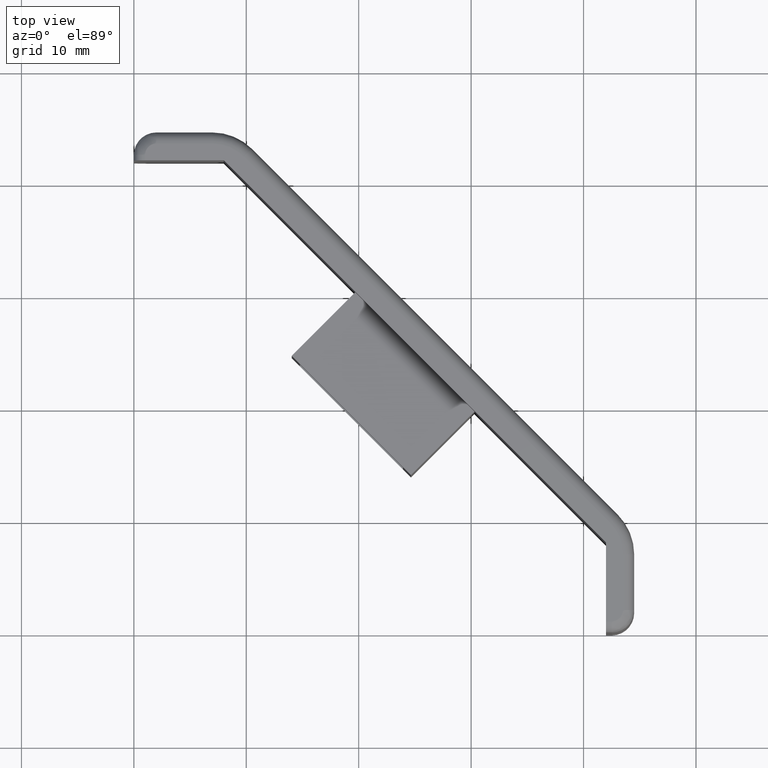
[diagram: clean part render]
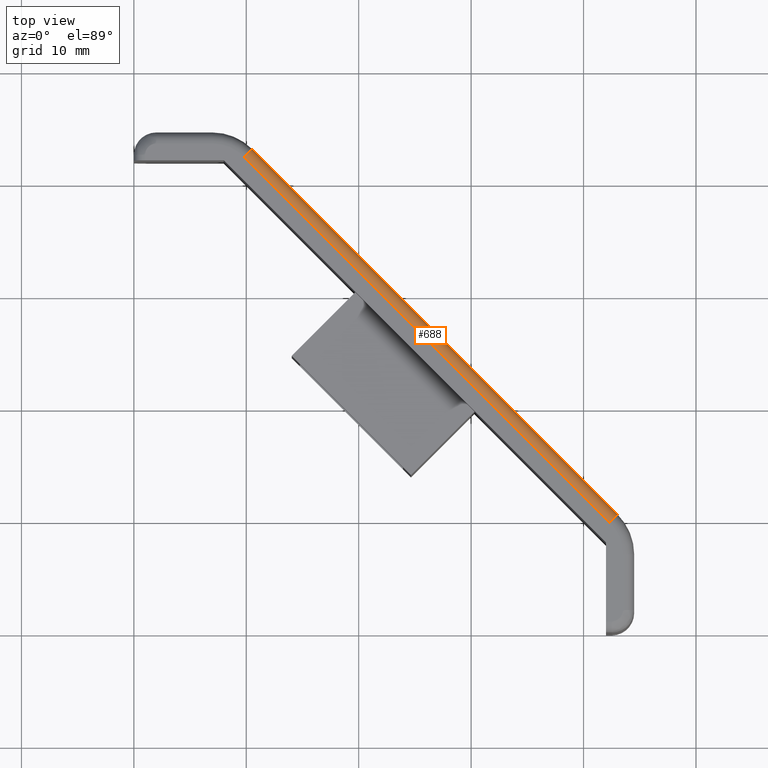
[diagram: same view with one face highlighted and labeled with its STEP entity id]
A machine part, top view. The second image highlights one B-rep face of the part: STEP entity #688.
In plain terms, the highlighted cylindrical surface (edge-blend (fillet) strip) has radius 1 mm, axis along (0.7071, -0.7071, 0).
Its self-contained STEP definition (entity closure, byte-faithful):
#31=CYLINDRICAL_SURFACE('',#751,0.999999999999998);
#68=FACE_OUTER_BOUND('',#112,.T.);
#112=EDGE_LOOP('',(#578,#579,#580,#581));
#135=LINE('',#1017,#197);
#172=LINE('',#1111,#234);
#197=VECTOR('',#799,46.0121933088198);
#234=VECTOR('',#874,46.0121933088197);
#272=CIRCLE('',#752,0.999999999999999);
#273=CIRCLE('',#753,1.);
#289=VERTEX_POINT('',#995);
#299=VERTEX_POINT('',#1015);
#336=VERTEX_POINT('',#1109);
#337=VERTEX_POINT('',#1110);
#359=EDGE_CURVE('',#299,#289,#135,.T.);
#404=EDGE_CURVE('',#336,#337,#172,.T.);
#430=EDGE_CURVE('',#336,#289,#272,.T.);
#431=EDGE_CURVE('',#299,#337,#273,.T.);
#578=ORIENTED_EDGE('',*,*,#404,.F.);
#579=ORIENTED_EDGE('',*,*,#430,.T.);
#580=ORIENTED_EDGE('',*,*,#359,.F.);
#581=ORIENTED_EDGE('',*,*,#431,.T.);
#688=ADVANCED_FACE('',(#68),#31,.T.);
#751=AXIS2_PLACEMENT_3D('',#1169,#934,#935);
#752=AXIS2_PLACEMENT_3D('',#1170,#936,#937);
#753=AXIS2_PLACEMENT_3D('',#1171,#938,#939);
#799=DIRECTION('',(-0.707106781186547,0.707106781186547,0.));
#874=DIRECTION('',(0.707106781186547,-0.707106781186547,0.));
#934=DIRECTION('center_axis',(0.707106781186548,-0.707106781186548,0.));
#935=DIRECTION('ref_axis',(0.707106781186548,0.707106781186548,0.));
#936=DIRECTION('center_axis',(0.707106781186547,-0.707106781186548,0.));
#937=DIRECTION('ref_axis',(0.707106781186548,0.707106781186547,0.));
#938=DIRECTION('center_axis',(-0.707106781186551,0.707106781186544,-1.09476442525376E-47));
#939=DIRECTION('ref_axis',(-0.707106781186544,-0.707106781186551,1.39774757217584E-62));
#995=CARTESIAN_POINT('',(9.79289321881351,42.3284271247462,8.25000000000001));
#1015=CARTESIAN_POINT('',(42.3284271247462,9.79289321881344,8.25000000000001));
#1017=CARTESIAN_POINT('',(8.32842712474624,43.7928932188135,8.25000000000001));
#1109=CARTESIAN_POINT('',(10.5000000000001,43.0355339059327,7.25000000000001));
#1110=CARTESIAN_POINT('',(43.0355339059328,10.5,7.25000000000001));
#1111=CARTESIAN_POINT('',(44.5,9.03553390593276,7.25000000000001));
#1169=CARTESIAN_POINT('Origin',(5.06066017177988,47.0606601717798,7.25000000000001));
#1170=CARTESIAN_POINT('Origin',(9.79289321881351,42.3284271247462,7.25000000000001));
#1171=CARTESIAN_POINT('Origin',(42.3284271247462,9.79289321881344,7.25000000000001));